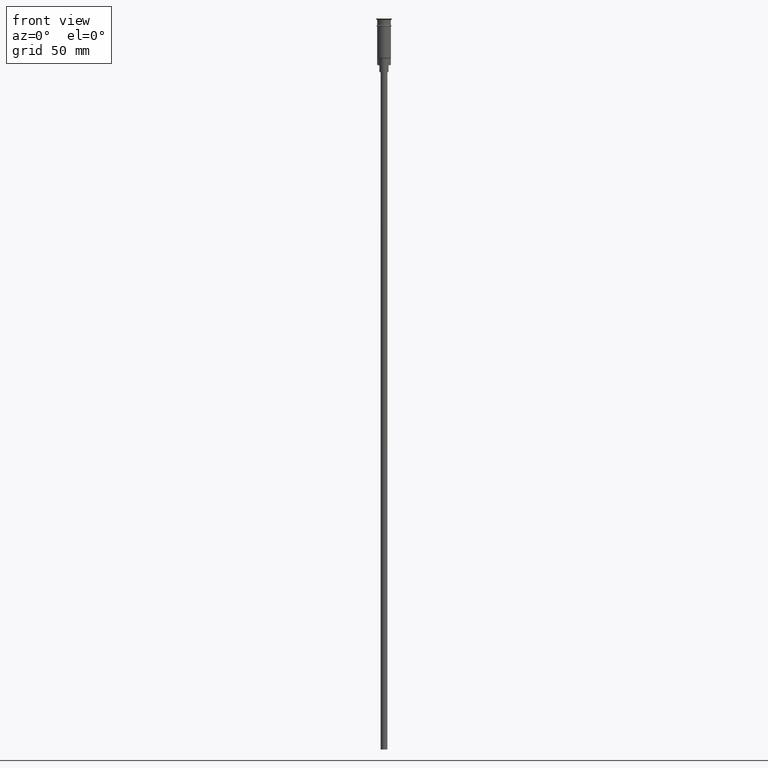
[diagram: clean part render]
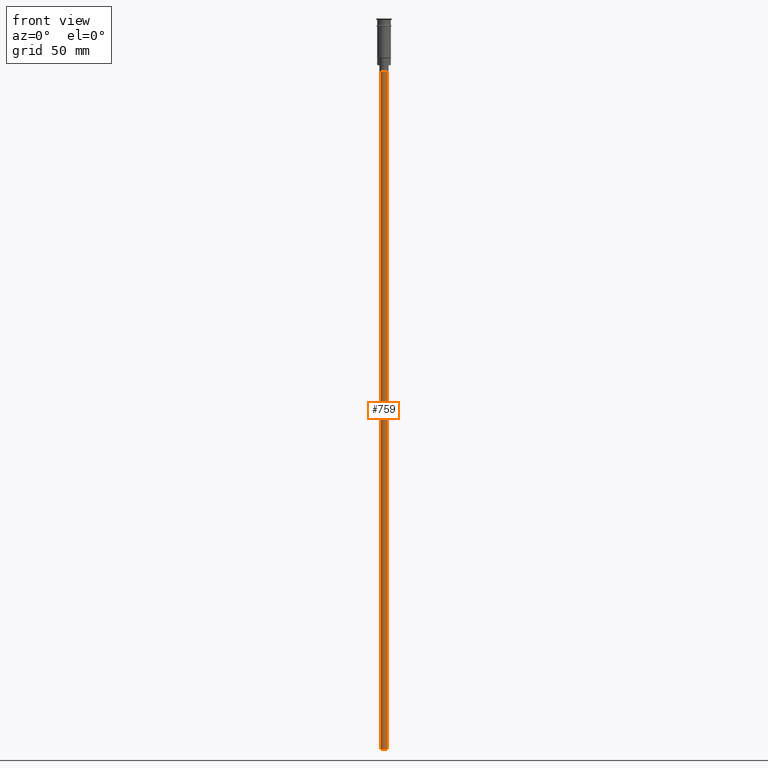
[diagram: same view with one face highlighted and labeled with its STEP entity id]
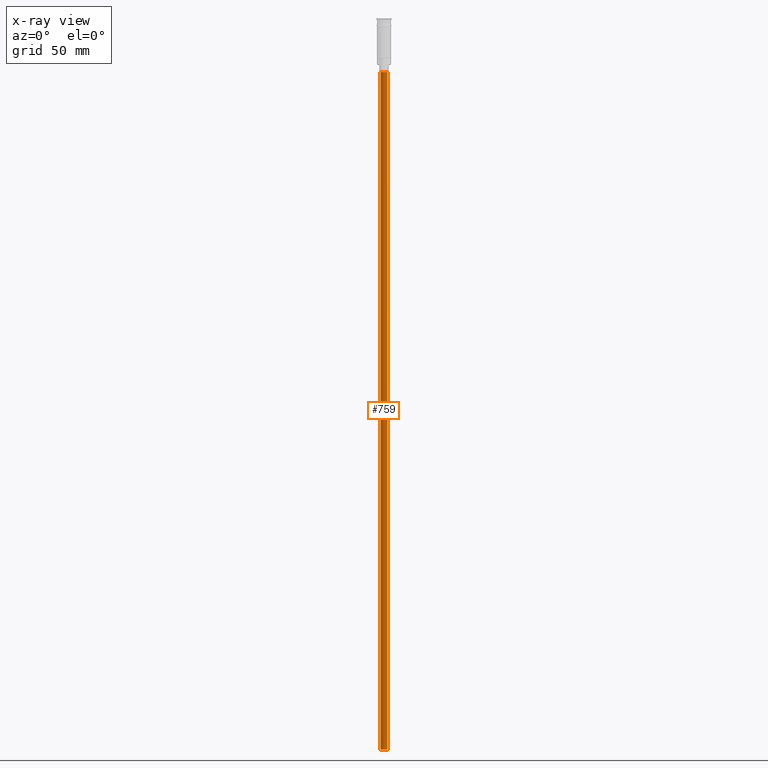
[diagram: x-ray of the same camera — body ghosted, the highlighted face saturated]
A machine part, front view. The second image highlights one B-rep face of the part: STEP entity #759.
The next image is the same camera in x-ray: the body ghosted, the highlighted face saturated — about 0% of this face is hidden behind the body in this view.
In plain terms, the highlighted cylindrical surface (edge-blend (fillet) strip) has radius 1.5 mm, axis along (-0, -0, 1).
Its self-contained STEP definition (entity closure, byte-faithful):
#32 = CARTESIAN_POINT ( 'NONE',  ( 0.000000000000000000, 0.000000000000000000, -320.5000000000000000 ) ) ;
#68 = VERTEX_POINT ( 'NONE', #585 ) ;
#79 = DIRECTION ( 'NONE',  ( -0.000000000000000000, -0.000000000000000000, 1.000000000000000000 ) ) ;
#84 = DIRECTION ( 'NONE',  ( -1.000000000000000000, 0.000000000000000000, 0.000000000000000000 ) ) ;
#98 = AXIS2_PLACEMENT_3D ( 'NONE', #1481, #1304, #710 ) ;
#125 = ORIENTED_EDGE ( 'NONE', *, *, #1161, .F. ) ;
#129 = CARTESIAN_POINT ( 'NONE',  ( 1.500000000000000222, 0.000000000000000000, -320.5000000000000000 ) ) ;
#131 = CARTESIAN_POINT ( 'NONE',  ( -1.500000000000000222, 1.836970198721030181E-16, -320.5000000000000000 ) ) ;
#349 = VERTEX_POINT ( 'NONE', #1520 ) ;
#464 = ORIENTED_EDGE ( 'NONE', *, *, #915, .F. ) ;
#473 = LINE ( 'NONE', #131, #999 ) ;
#562 = VERTEX_POINT ( 'NONE', #592 ) ;
#585 = CARTESIAN_POINT ( 'NONE',  ( -1.500000000000000222, 1.836970198721030181E-16, -23.50000000000000000 ) ) ;
#592 = CARTESIAN_POINT ( 'NONE',  ( -1.500000000000000222, 1.836970198721030181E-16, -320.5000000000000000 ) ) ;
#710 = DIRECTION ( 'NONE',  ( -1.000000000000000000, 0.000000000000000000, 0.000000000000000000 ) ) ;
#759 = ADVANCED_FACE ( 'NONE', ( #1545 ), #1035, .T. ) ;
#760 = CARTESIAN_POINT ( 'NONE',  ( 1.500000000000000222, 0.000000000000000000, -320.5000000000000000 ) ) ;
#799 = DIRECTION ( 'NONE',  ( -0.000000000000000000, -0.000000000000000000, 1.000000000000000000 ) ) ;
#820 = CIRCLE ( 'NONE', #98, 1.500000000000000222 ) ;
#892 = CARTESIAN_POINT ( 'NONE',  ( 0.000000000000000000, 0.000000000000000000, -320.5000000000000000 ) ) ;
#915 = EDGE_CURVE ( 'NONE', #562, #68, #473, .T. ) ;
#999 = VECTOR ( 'NONE', #79, 1000.000000000000000 ) ;
#1011 = DIRECTION ( 'NONE',  ( 1.000000000000000000, 0.000000000000000000, 0.000000000000000000 ) ) ;
#1030 = EDGE_CURVE ( 'NONE', #349, #68, #820, .T. ) ;
#1035 = CYLINDRICAL_SURFACE ( 'NONE', #1330, 1.500000000000000222 ) ;
#1048 = VERTEX_POINT ( 'NONE', #760 ) ;
#1070 = CIRCLE ( 'NONE', #1380, 1.500000000000000222 ) ;
#1161 = EDGE_CURVE ( 'NONE', #1048, #562, #1070, .T. ) ;
#1259 = DIRECTION ( 'NONE',  ( 0.000000000000000000, 0.000000000000000000, -1.000000000000000000 ) ) ;
#1283 = ORIENTED_EDGE ( 'NONE', *, *, #1347, .T. ) ;
#1304 = DIRECTION ( 'NONE',  ( 0.000000000000000000, 0.000000000000000000, -1.000000000000000000 ) ) ;
#1330 = AXIS2_PLACEMENT_3D ( 'NONE', #32, #799, #1011 ) ;
#1347 = EDGE_CURVE ( 'NONE', #1048, #349, #1443, .T. ) ;
#1371 = EDGE_LOOP ( 'NONE', ( #464, #125, #1283, #1455 ) ) ;
#1380 = AXIS2_PLACEMENT_3D ( 'NONE', #892, #1259, #84 ) ;
#1382 = VECTOR ( 'NONE', #1457, 1000.000000000000000 ) ;
#1443 = LINE ( 'NONE', #129, #1382 ) ;
#1455 = ORIENTED_EDGE ( 'NONE', *, *, #1030, .T. ) ;
#1457 = DIRECTION ( 'NONE',  ( -0.000000000000000000, -0.000000000000000000, 1.000000000000000000 ) ) ;
#1481 = CARTESIAN_POINT ( 'NONE',  ( 0.000000000000000000, 0.000000000000000000, -23.50000000000000000 ) ) ;
#1520 = CARTESIAN_POINT ( 'NONE',  ( 1.500000000000000222, 0.000000000000000000, -23.50000000000000000 ) ) ;
#1545 = FACE_OUTER_BOUND ( 'NONE', #1371, .T. ) ;